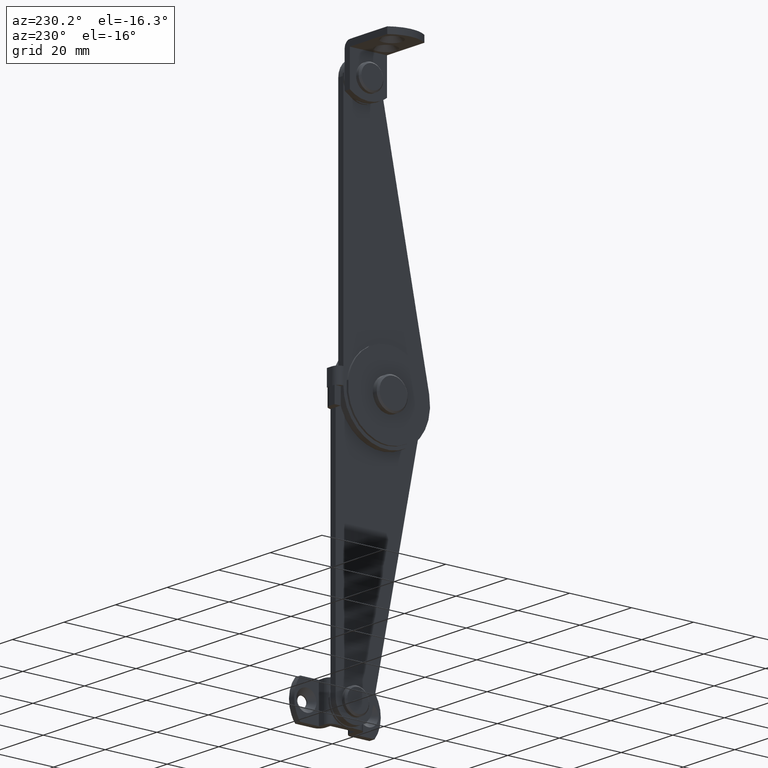
[diagram: clean part render]
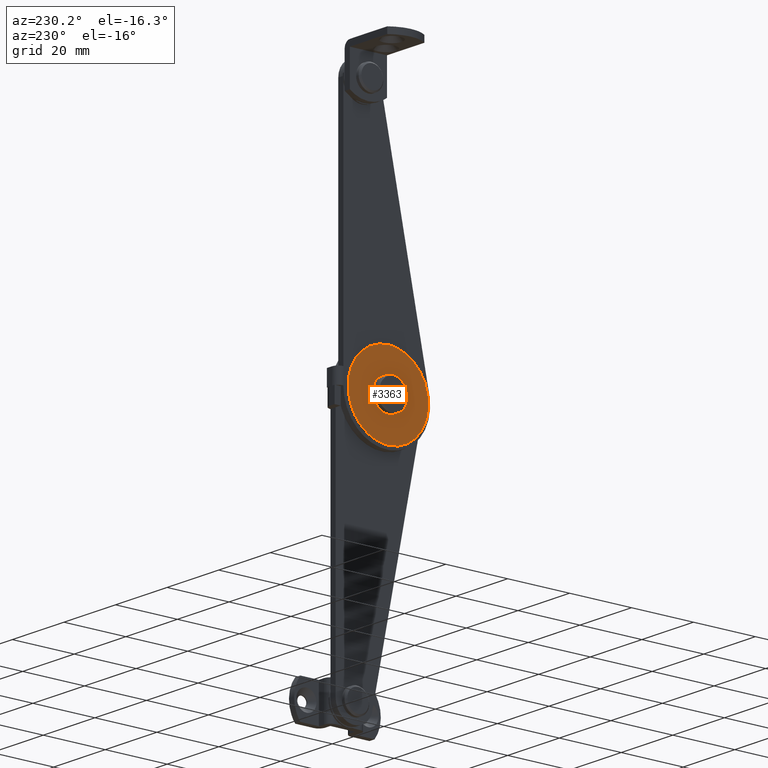
[diagram: same view with one face highlighted and labeled with its STEP entity id]
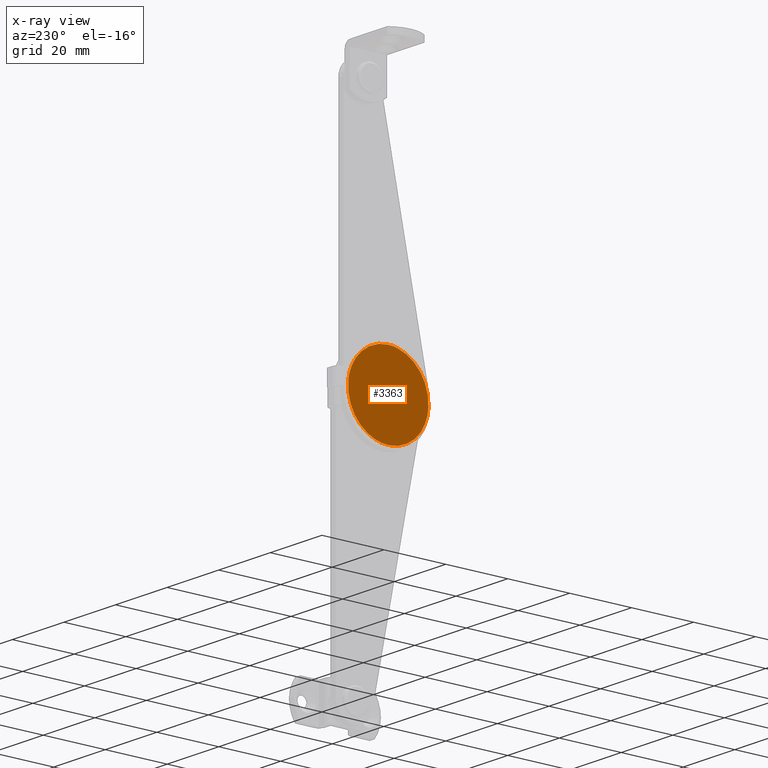
[diagram: x-ray of the same camera — body ghosted, the highlighted face saturated]
A machine part, auxiliary view. The second image highlights one B-rep face of the part: STEP entity #3363.
The next image is the same camera in x-ray: the body ghosted, the highlighted face saturated — about 0% of this face is hidden behind the body in this view.
In plain terms, the highlighted face is a freeform B-spline surface patch.
Its self-contained STEP definition (entity closure, byte-faithful):
#2996=CARTESIAN_POINT('',(-12.100037316634900,-6.510485710456642,0.177051352003156));
#2997=VERTEX_POINT('',#2996);
#2998=CARTESIAN_POINT('',(-12.100037316634900,-8.0,-1.500000000000000));
#2999=VERTEX_POINT('',#2998);
#3000=CARTESIAN_POINT('',(-12.100037316634902,-6.510485710456643,0.177051352003156));
#3001=CARTESIAN_POINT('',(-12.100037316634902,-6.500000000000001,0.088836179496074));
#3002=CARTESIAN_POINT('',(-12.100037316634900,-6.500000000000001,4.898425E-016));
#3003=CARTESIAN_POINT('',(-12.100037316634902,-6.500000000000003,-1.500000000000000));
#3004=CARTESIAN_POINT('',(-12.100037316634900,-8.0,-1.500000000000000));
#3012=(BOUNDED_CURVE()B_SPLINE_CURVE(2,(#3000,#3001,#3002,#3003,#3004),.UNSPECIFIED.,.F.,.U.)B_SPLINE_CURVE_WITH_KNOTS((3,2,3),(0.229562473511556,0.250000000000000,0.500000000000000),.UNSPECIFIED.)CURVE()GEOMETRIC_REPRESENTATION_ITEM()RATIONAL_B_SPLINE_CURVE((0.956026754179872,0.976055948328857,1.0,0.707106781186548,1.0))REPRESENTATION_ITEM(''));
#3013=EDGE_CURVE('',#2997,#2999,#3012,.T.);
#3015=CARTESIAN_POINT('',(-12.100037316634900,-9.497202197502414,-0.091572811434083));
#3016=VERTEX_POINT('',#3015);
#3017=CARTESIAN_POINT('',(-12.100037316634900,-8.0,-1.500000000000000));
#3018=CARTESIAN_POINT('',(-12.100037316634902,-9.411059096332743,-1.500000000000000));
#3019=CARTESIAN_POINT('',(-12.100037316634904,-9.497202197502414,-0.091572811434083));
#3027=(BOUNDED_CURVE()B_SPLINE_CURVE(2,(#3017,#3018,#3019),.UNSPECIFIED.,.F.,.U.)B_SPLINE_CURVE_WITH_KNOTS((3,3),(0.500000000000000,0.739332961750605),.UNSPECIFIED.)CURVE()GEOMETRIC_REPRESENTATION_ITEM()RATIONAL_B_SPLINE_CURVE((1.0,0.719603993858834,0.976072040620116))REPRESENTATION_ITEM(''));
#3028=EDGE_CURVE('',#2999,#3016,#3027,.T.);
#3095=CARTESIAN_POINT('',(-12.100037316634900,-8.0,1.500000000000000));
#3096=VERTEX_POINT('',#3095);
#3097=CARTESIAN_POINT('',(-12.100037316634900,-8.0,1.500000000000000));
#3098=CARTESIAN_POINT('',(-12.100037316634904,-6.667738211105410,1.500000000000000));
#3099=CARTESIAN_POINT('',(-12.100037316634905,-6.510485710456642,0.177051352003156));
#3107=(BOUNDED_CURVE()B_SPLINE_CURVE(2,(#3097,#3098,#3099),.UNSPECIFIED.,.F.,.U.)B_SPLINE_CURVE_WITH_KNOTS((3,3),(0.0,0.229562473511556),.UNSPECIFIED.)CURVE()GEOMETRIC_REPRESENTATION_ITEM()RATIONAL_B_SPLINE_CURVE((1.0,0.731050832857690,0.956026754179871))REPRESENTATION_ITEM(''));
#3108=EDGE_CURVE('',#3096,#2997,#3107,.T.);
#3142=CARTESIAN_POINT('',(-12.100037316634904,-9.497202197502414,-0.091572811434083));
#3143=CARTESIAN_POINT('',(-12.100037316634898,-9.500000000000002,-0.045829147085658));
#3144=CARTESIAN_POINT('',(-12.100037316634900,-9.500000000000000,4.898425E-016));
#3145=CARTESIAN_POINT('',(-12.100037316634902,-9.500000000000000,1.500000000000001));
#3146=CARTESIAN_POINT('',(-12.100037316634900,-8.0,1.500000000000000));
#3154=(BOUNDED_CURVE()B_SPLINE_CURVE(2,(#3142,#3143,#3144,#3145,#3146),.UNSPECIFIED.,.F.,.U.)B_SPLINE_CURVE_WITH_KNOTS((3,2,3),(0.739332961750605,0.750000000000000,1.0),.UNSPECIFIED.)CURVE()GEOMETRIC_REPRESENTATION_ITEM()RATIONAL_B_SPLINE_CURVE((0.976072040620117,0.987502787327714,1.0,0.707106781186548,1.0))REPRESENTATION_ITEM(''));
#3155=EDGE_CURVE('',#3016,#3096,#3154,.T.);
#3182=CARTESIAN_POINT('',(-12.100037316634900,4.909123842707695,1.534445050705832));
#3183=VERTEX_POINT('',#3182);
#3184=CARTESIAN_POINT('',(-12.100037316634900,-8.0,-13.0));
#3185=VERTEX_POINT('',#3184);
#3186=CARTESIAN_POINT('',(-12.100037316634900,4.909123842707695,1.534445050705832));
#3187=CARTESIAN_POINT('',(-12.100037316634898,4.999999999999999,0.769913555644580));
#3188=CARTESIAN_POINT('',(-12.100037316634900,4.999999999999999,4.898425E-016));
#3189=CARTESIAN_POINT('',(-12.100037316634900,4.999999999999999,-13.0));
#3190=CARTESIAN_POINT('',(-12.100037316634900,-8.0,-13.0));
#3198=(BOUNDED_CURVE()B_SPLINE_CURVE(2,(#3186,#3187,#3188,#3189,#3190),.UNSPECIFIED.,.F.,.U.)B_SPLINE_CURVE_WITH_KNOTS((3,2,3),(0.229562473511246,0.250000000000000,0.500000000000000),.UNSPECIFIED.)CURVE()GEOMETRIC_REPRESENTATION_ITEM()RATIONAL_B_SPLINE_CURVE((0.956026754179265,0.976055948328495,1.0,0.707106781186547,1.0))REPRESENTATION_ITEM(''));
#3199=EDGE_CURVE('',#3183,#3185,#3198,.T.);
#3240=CARTESIAN_POINT('',(-12.100037316634900,-20.975752379467082,-0.793631014234175));
#3241=VERTEX_POINT('',#3240);
#3247=CARTESIAN_POINT('',(-12.100037316634900,-8.0,-13.0));
#3248=CARTESIAN_POINT('',(-12.100037316634898,-20.229178869243242,-13.0));
#3249=CARTESIAN_POINT('',(-12.100037316634898,-20.975752379467078,-0.793631014234175));
#3257=(BOUNDED_CURVE()B_SPLINE_CURVE(2,(#3247,#3248,#3249),.UNSPECIFIED.,.F.,.U.)B_SPLINE_CURVE_WITH_KNOTS((3,3),(0.500000000000000,0.739332962234493),.UNSPECIFIED.)CURVE()GEOMETRIC_REPRESENTATION_ITEM()RATIONAL_B_SPLINE_CURVE((1.0,0.719603993291923,0.976072041657181))REPRESENTATION_ITEM(''));
#3258=EDGE_CURVE('',#3185,#3241,#3257,.T.);
#3281=CARTESIAN_POINT('',(-12.100037316634900,-8.0,13.0));
#3282=VERTEX_POINT('',#3281);
#3283=CARTESIAN_POINT('',(-12.100037316634900,-8.0,13.0));
#3284=CARTESIAN_POINT('',(-12.100037316634900,3.546268837065186,13.000000000000002));
#3285=CARTESIAN_POINT('',(-12.100037316634900,4.909123842707695,1.534445050705832));
#3293=(BOUNDED_CURVE()B_SPLINE_CURVE(2,(#3283,#3284,#3285),.UNSPECIFIED.,.F.,.U.)B_SPLINE_CURVE_WITH_KNOTS((3,3),(0.0,0.229562473511246),.UNSPECIFIED.)CURVE()GEOMETRIC_REPRESENTATION_ITEM()RATIONAL_B_SPLINE_CURVE((1.0,0.731050832858053,0.956026754179265))REPRESENTATION_ITEM(''));
#3294=EDGE_CURVE('',#3282,#3183,#3293,.T.);
#3296=CARTESIAN_POINT('',(-12.100037316634902,-20.975752379467082,-0.793631014234175));
#3297=CARTESIAN_POINT('',(-12.100037316634907,-21.000000000000004,-0.397185923163479));
#3298=CARTESIAN_POINT('',(-12.100037316634900,-21.0,4.898425E-016));
#3299=CARTESIAN_POINT('',(-12.100037316634900,-20.999999999999989,13.0));
#3300=CARTESIAN_POINT('',(-12.100037316634900,-8.0,13.0));
#3308=(BOUNDED_CURVE()B_SPLINE_CURVE(2,(#3296,#3297,#3298,#3299,#3300),.UNSPECIFIED.,.F.,.U.)B_SPLINE_CURVE_WITH_KNOTS((3,2,3),(0.739332962234494,0.750000000000000,1.0),.UNSPECIFIED.)CURVE()GEOMETRIC_REPRESENTATION_ITEM()RATIONAL_B_SPLINE_CURVE((0.976072041657183,0.987502787894625,1.0,0.707106781186547,1.0))REPRESENTATION_ITEM(''));
#3309=EDGE_CURVE('',#3241,#3282,#3308,.T.);
#3346=CARTESIAN_POINT('',(-12.100037316634900,6.298464238961527,-14.298699949606950));
#3347=CARTESIAN_POINT('',(-12.100037316634900,-22.298383575995750,-14.298699949606950));
#3348=CARTESIAN_POINT('',(-12.100037316634900,6.298464238961527,14.298700646981301));
#3349=CARTESIAN_POINT('',(-12.100037316634900,-22.298383575995750,14.298700646981301));
#3350=B_SPLINE_SURFACE_WITH_KNOTS('',1,1,((#3346,#3348),(#3347,#3349)),.UNSPECIFIED.,.F.,.F.,.U.,(2,2),(2,2),(0.0,28.596847814957279),(0.0,28.597400596588251),.UNSPECIFIED.);
#3351=ORIENTED_EDGE('',*,*,#3294,.T.);
#3352=ORIENTED_EDGE('',*,*,#3199,.T.);
#3353=ORIENTED_EDGE('',*,*,#3258,.T.);
#3354=ORIENTED_EDGE('',*,*,#3309,.T.);
#3355=EDGE_LOOP('',(#3351,#3352,#3353,#3354));
#3356=FACE_OUTER_BOUND('',#3355,.T.);
#3357=ORIENTED_EDGE('',*,*,#3028,.F.);
#3358=ORIENTED_EDGE('',*,*,#3013,.F.);
#3359=ORIENTED_EDGE('',*,*,#3108,.F.);
#3360=ORIENTED_EDGE('',*,*,#3155,.F.);
#3361=EDGE_LOOP('',(#3357,#3358,#3359,#3360));
#3362=FACE_BOUND('',#3361,.T.);
#3363=ADVANCED_FACE('',(#3356,#3362),#3350,.T.);